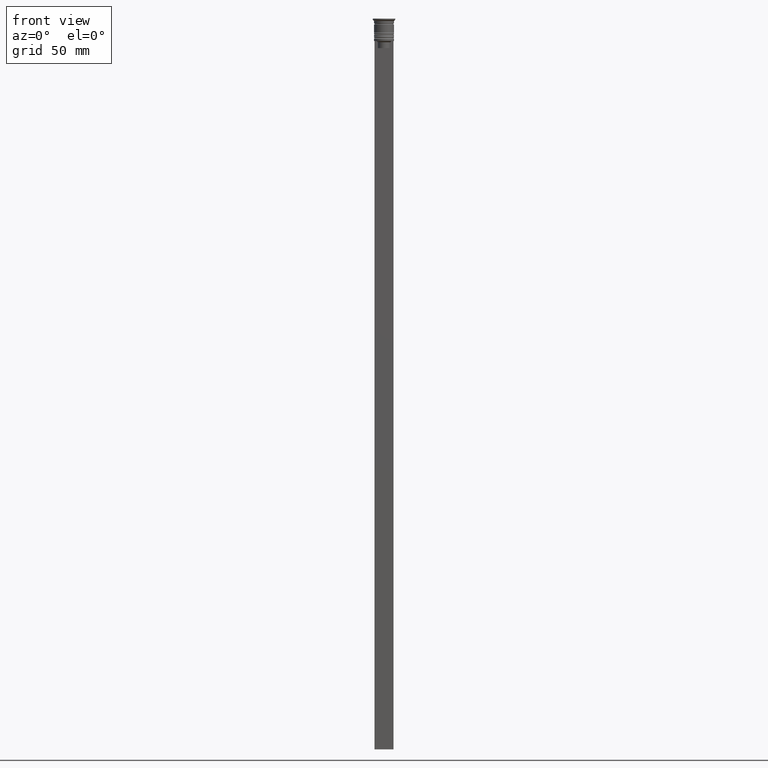
[diagram: clean part render]
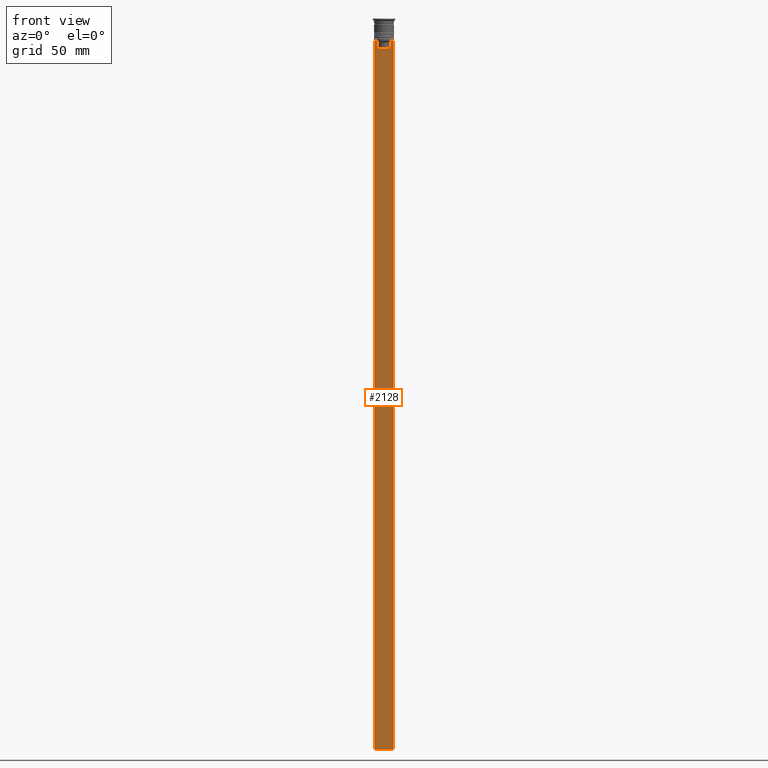
[diagram: same view with one face highlighted and labeled with its STEP entity id]
A machine part, front view. The second image highlights one B-rep face of the part: STEP entity #2128.
In plain terms, the highlighted planar face has unit normal (0, -1, -0).
Its self-contained STEP definition (entity closure, byte-faithful):
#6 = EDGE_CURVE ( 'NONE', #2216, #124, #553, .T. ) ;
#14 = CARTESIAN_POINT ( 'NONE',  ( 4.000000000000005329, -0.5000000000000004441, -9.500000000000000000 ) ) ;
#37 = CARTESIAN_POINT ( 'NONE',  ( -2.771866350855961336, -0.5000000000000004441, -9.833580160334840059 ) ) ;
#94 = ORIENTED_EDGE ( 'NONE', *, *, #1895, .F. ) ;
#113 = CARTESIAN_POINT ( 'NONE',  ( 4.000000000000005329, -0.5000000000000004441, -309.5000000000000000 ) ) ;
#124 = VERTEX_POINT ( 'NONE', #625 ) ;
#132 = EDGE_CURVE ( 'NONE', #124, #1626, #2161, .T. ) ;
#156 = ORIENTED_EDGE ( 'NONE', *, *, #1535, .F. ) ;
#177 = CARTESIAN_POINT ( 'NONE',  ( -3.999999999999994671, -0.5000000000000004441, -9.500000000000000000 ) ) ;
#189 = ORIENTED_EDGE ( 'NONE', *, *, #565, .F. ) ;
#214 = AXIS2_PLACEMENT_3D ( 'NONE', #1001, #1705, #2062 ) ;
#217 = VECTOR ( 'NONE', #510, 1000.000000000000000 ) ;
#259 = VERTEX_POINT ( 'NONE', #686 ) ;
#333 = EDGE_CURVE ( 'NONE', #1676, #2023, #540, .T. ) ;
#343 = EDGE_CURVE ( 'NONE', #694, #2032, #1833, .T. ) ;
#367 = DIRECTION ( 'NONE',  ( 0.000000000000000000, 0.000000000000000000, -1.000000000000000000 ) ) ;
#380 = DIRECTION ( 'NONE',  ( 0.000000000000000000, 0.000000000000000000, -1.000000000000000000 ) ) ;
#438 = DIRECTION ( 'NONE',  ( -0.000000000000000000, -0.000000000000000000, 1.000000000000000000 ) ) ;
#474 = CARTESIAN_POINT ( 'NONE',  ( 2.771864055700302476, -0.5000000000000004441, -9.833582414266679450 ) ) ;
#489 = DIRECTION ( 'NONE',  ( 0.000000000000000000, 0.000000000000000000, -1.000000000000000000 ) ) ;
#510 = DIRECTION ( 'NONE',  ( 1.000000000000000000, 0.000000000000000000, 0.000000000000000000 ) ) ;
#530 = CARTESIAN_POINT ( 'NONE',  ( 4.000000000000005329, -0.5000000000000004441, -1.437742251701450202 ) ) ;
#540 = LINE ( 'NONE', #530, #1713 ) ;
#553 = LINE ( 'NONE', #824, #1443 ) ;
#565 = EDGE_CURVE ( 'NONE', #1329, #259, #1935, .T. ) ;
#625 = CARTESIAN_POINT ( 'NONE',  ( 2.602402735934616906, -0.5000000000000004441, -10.00000000000000178 ) ) ;
#631 = CARTESIAN_POINT ( 'NONE',  ( 2.602402735934616906, -0.5000000000000004441, -12.50000000000000000 ) ) ;
#639 = VECTOR ( 'NONE', #489, 1000.000000000000000 ) ;
#671 = CARTESIAN_POINT ( 'NONE',  ( 2.941045828809988549, -0.5000000000000004441, -9.666875663357577864 ) ) ;
#686 = CARTESIAN_POINT ( 'NONE',  ( -2.602402735934616906, -0.5000000000000004441, -12.50000000000000000 ) ) ;
#688 = CARTESIAN_POINT ( 'NONE',  ( 4.000000000000005329, -0.5000000000000004441, -9.500000000000000000 ) ) ;
#694 = VERTEX_POINT ( 'NONE', #177 ) ;
#714 = CARTESIAN_POINT ( 'NONE',  ( -3.110064308016796453, -0.5000000000000004441, -9.500000000000000000 ) ) ;
#781 = FACE_OUTER_BOUND ( 'NONE', #1359, .T. ) ;
#804 = EDGE_CURVE ( 'NONE', #259, #2216, #1821, .T. ) ;
#824 = CARTESIAN_POINT ( 'NONE',  ( 2.602402735934616906, -0.5000000000000004441, 0.000000000000000000 ) ) ;
#850 = CARTESIAN_POINT ( 'NONE',  ( 2.602402735934616906, -0.5000000000000004441, -10.00000000000000178 ) ) ;
#931 = LINE ( 'NONE', #14, #1296 ) ;
#996 = VECTOR ( 'NONE', #1908, 1000.000000000000000 ) ;
#1001 = CARTESIAN_POINT ( 'NONE',  ( 4.000000000000005329, -0.5000000000000004441, -1.437742251701450202 ) ) ;
#1002 = B_SPLINE_CURVE_WITH_KNOTS ( 'NONE', 3,
 ( #714, #1453, #37, #1500 ),
 .UNSPECIFIED., .F., .F.,
 ( 4, 4 ),
 ( 0.005378271293598281544, 0.006090816219556000749 ),
 .UNSPECIFIED. ) ;
#1041 = CARTESIAN_POINT ( 'NONE',  ( 3.110064308016796453, -0.5000000000000004441, -9.500000000000000000 ) ) ;
#1042 = DIRECTION ( 'NONE',  ( -1.000000000000000000, 0.000000000000000000, 0.000000000000000000 ) ) ;
#1088 = ORIENTED_EDGE ( 'NONE', *, *, #1268, .F. ) ;
#1109 = ORIENTED_EDGE ( 'NONE', *, *, #2022, .F. ) ;
#1141 = VECTOR ( 'NONE', #367, 1000.000000000000000 ) ;
#1162 = PLANE ( 'NONE',  #214 ) ;
#1169 = CARTESIAN_POINT ( 'NONE',  ( 4.000000000000005329, -0.5000000000000004441, -9.500000000000000000 ) ) ;
#1213 = ORIENTED_EDGE ( 'NONE', *, *, #132, .F. ) ;
#1268 = EDGE_CURVE ( 'NONE', #1642, #1329, #1002, .T. ) ;
#1287 = CARTESIAN_POINT ( 'NONE',  ( 0.000000000000000000, -0.5000000000000004441, -12.50000000000000000 ) ) ;
#1296 = VECTOR ( 'NONE', #1986, 1000.000000000000000 ) ;
#1304 = CARTESIAN_POINT ( 'NONE',  ( 4.000000000000005329, -0.5000000000000004441, -309.5000000000000000 ) ) ;
#1329 = VERTEX_POINT ( 'NONE', #2073 ) ;
#1335 = VECTOR ( 'NONE', #1042, 1000.000000000000000 ) ;
#1359 = EDGE_LOOP ( 'NONE', ( #1088, #156, #1946, #94, #1828, #1109, #1213, #1967, #1717, #189 ) ) ;
#1443 = VECTOR ( 'NONE', #438, 1000.000000000000000 ) ;
#1453 = CARTESIAN_POINT ( 'NONE',  ( -2.941047749529104749, -0.5000000000000004441, -9.666873766989334982 ) ) ;
#1500 = CARTESIAN_POINT ( 'NONE',  ( -2.602402735934616906, -0.5000000000000004441, -10.00000000000000178 ) ) ;
#1535 = EDGE_CURVE ( 'NONE', #694, #1642, #1592, .T. ) ;
#1592 = LINE ( 'NONE', #1169, #996 ) ;
#1626 = VERTEX_POINT ( 'NONE', #1808 ) ;
#1642 = VERTEX_POINT ( 'NONE', #1823 ) ;
#1676 = VERTEX_POINT ( 'NONE', #688 ) ;
#1705 = DIRECTION ( 'NONE',  ( 0.000000000000000000, -1.000000000000000000, -0.000000000000000000 ) ) ;
#1713 = VECTOR ( 'NONE', #380, 1000.000000000000000 ) ;
#1717 = ORIENTED_EDGE ( 'NONE', *, *, #804, .F. ) ;
#1808 = CARTESIAN_POINT ( 'NONE',  ( 3.110064308016796453, -0.5000000000000004441, -9.500000000000000000 ) ) ;
#1821 = LINE ( 'NONE', #1287, #217 ) ;
#1823 = CARTESIAN_POINT ( 'NONE',  ( -3.110064308016796453, -0.5000000000000004441, -9.500000000000000000 ) ) ;
#1828 = ORIENTED_EDGE ( 'NONE', *, *, #333, .F. ) ;
#1833 = LINE ( 'NONE', #2028, #1141 ) ;
#1895 = EDGE_CURVE ( 'NONE', #2023, #2032, #1965, .T. ) ;
#1908 = DIRECTION ( 'NONE',  ( 1.000000000000000000, 0.000000000000000000, 0.000000000000000000 ) ) ;
#1935 = LINE ( 'NONE', #2134, #639 ) ;
#1946 = ORIENTED_EDGE ( 'NONE', *, *, #343, .T. ) ;
#1965 = LINE ( 'NONE', #113, #1335 ) ;
#1967 = ORIENTED_EDGE ( 'NONE', *, *, #6, .F. ) ;
#1986 = DIRECTION ( 'NONE',  ( 1.000000000000000000, 0.000000000000000000, 0.000000000000000000 ) ) ;
#2022 = EDGE_CURVE ( 'NONE', #1626, #1676, #931, .T. ) ;
#2023 = VERTEX_POINT ( 'NONE', #1304 ) ;
#2028 = CARTESIAN_POINT ( 'NONE',  ( -3.999999999999994671, -0.5000000000000004441, -1.437742251701450202 ) ) ;
#2032 = VERTEX_POINT ( 'NONE', #2154 ) ;
#2062 = DIRECTION ( 'NONE',  ( 0.000000000000000000, 0.000000000000000000, -1.000000000000000000 ) ) ;
#2073 = CARTESIAN_POINT ( 'NONE',  ( -2.602402735934616906, -0.5000000000000004441, -10.00000000000000178 ) ) ;
#2128 = ADVANCED_FACE ( 'NONE', ( #781 ), #1162, .T. ) ;
#2134 = CARTESIAN_POINT ( 'NONE',  ( -2.602402735934616906, -0.5000000000000004441, 0.000000000000000000 ) ) ;
#2154 = CARTESIAN_POINT ( 'NONE',  ( -3.999999999999994671, -0.5000000000000004441, -309.5000000000000000 ) ) ;
#2161 = B_SPLINE_CURVE_WITH_KNOTS ( 'NONE', 3,
 ( #850, #474, #671, #1041 ),
 .UNSPECIFIED., .F., .F.,
 ( 4, 4 ),
 ( 0.01295151922336847811, 0.01367164596165162602 ),
 .UNSPECIFIED. ) ;
#2216 = VERTEX_POINT ( 'NONE', #631 ) ;